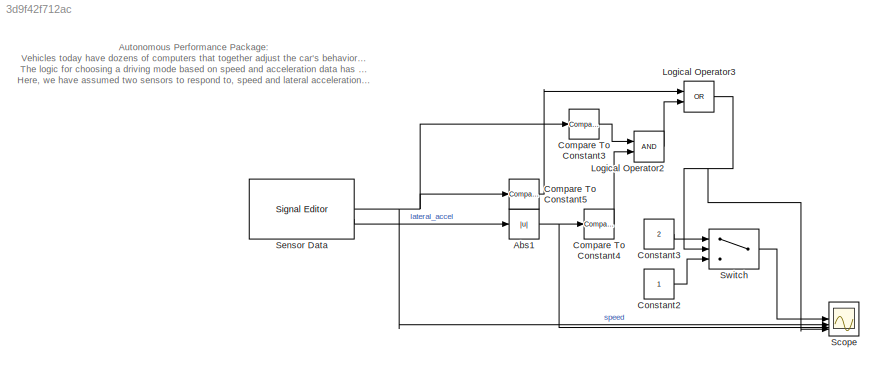
MODEL slx_3d9f42f712ac
KIND model
CONFIG AbsTol = auto
CONFIG EnableMultiTasking = off
CONFIG FixedStep = auto
CONFIG MaxStep = auto
CONFIG MinStep = auto
CONFIG RelTol = 1e-3
CONFIG SampleTimeConstraint = Unconstrained
CONFIG SolverName = VariableStepAuto
CONFIG StartTime = 0.0
CONFIG StopTime = 10.0
BLOCK [Abs] Abs1
  SaturateOnIntegerOverflow = off
BLOCK [Reference] Compare To Constant3  REF=simulink/Logic and Bit
Operations/Compare
To Constant
  SourceBlock = simulink/Logic and Bit\nOperations/Compare\nTo Constant
  SourceType = Compare To Constant
BLOCK [Reference] Compare To Constant4  REF=simulink/Logic and Bit
Operations/Compare
To Constant
  SourceBlock = simulink/Logic and Bit\nOperations/Compare\nTo Constant
  SourceType = Compare To Constant
BLOCK [Reference] Compare To Constant5  REF=simulink/Logic and Bit
Operations/Compare
To Constant
  SourceBlock = simulink/Logic and Bit\nOperations/Compare\nTo Constant
  SourceType = Compare To Constant
BLOCK [Constant] Constant2
BLOCK [Constant] Constant3
  Value = 2
BLOCK [Logic] Logical Operator2
  AllPortsSameDT = off
  OutDataTypeStr = boolean
BLOCK [Logic] Logical Operator3
  AllPortsSameDT = off
  Operator = OR
  OutDataTypeStr = boolean
BLOCK [Scope] Scope
  Floating = off
  NumInputPorts = 4
  ScopeSpecificationString = Simulink.scopes.TimeScopeBlockCfg('CurrentConfiguration', extmgr.ConfigurationSet(extmgr.Configuration('Core','General UI',true),extmgr.Configuration('Core','Source UI',true),extmgr.Configuration('Sources','WiredSimulink',true),extmgr.Configuration('Visuals','Time Domain',true,'SerializedDisplays',{struct('MinYLimReal','0.875','MaxYLimReal','2.125','YLabelReal','','MinYLimMag','0.875','MaxYLimMag'...<+3404ch>
BLOCK [Reference] Sensor Data  REF=SignalEditorBlockLib/Signal Editor
  SourceBlock = SignalEditorBlockLib/Signal Editor
  SourceType = SignalEditor
  UserDataPersistent = on
BLOCK [Switch] Switch
  Criteria = u2 > Threshold
  InputSameDT = off
  SaturateOnIntegerOverflow = off
ANNOTATION (root): Autonomous Performance Package : Vehicles today have dozens of computers that together adjust the car's behavior in response to data read by hundreds of sensors. The logic for choosing a driving mode based on speed and acceleration data has been modelled. Here, we have assumed two sensors to respond to, speed and lateral acceleration—to decide between a "high performance" and "economy" mode.
NET Abs1:1 -> Compare To Constant4:1, Scope:3
LINE Compare To Constant3:1 -> Logical Operator2:1
LINE Compare To Constant4:1 -> Logical Operator2:2
LINE Compare To Constant5:1 -> Logical Operator3:1
LINE Constant2:1 -> Switch:3
LINE Constant3:1 -> Switch:1
LINE Logical Operator2:1 -> Logical Operator3:2
NET Logical Operator3:1 -> Scope:4, Switch:2
NET Sensor Data:1 -> Compare To Constant3:1, Compare To Constant5:1, Scope:2
LINE Sensor Data:2 -> Abs1:1
LINE Switch:1 -> Scope:1
note: NET lines group one-source signal fan-out (src -> all destinations, sorted); 1:1 wires keep LINE
